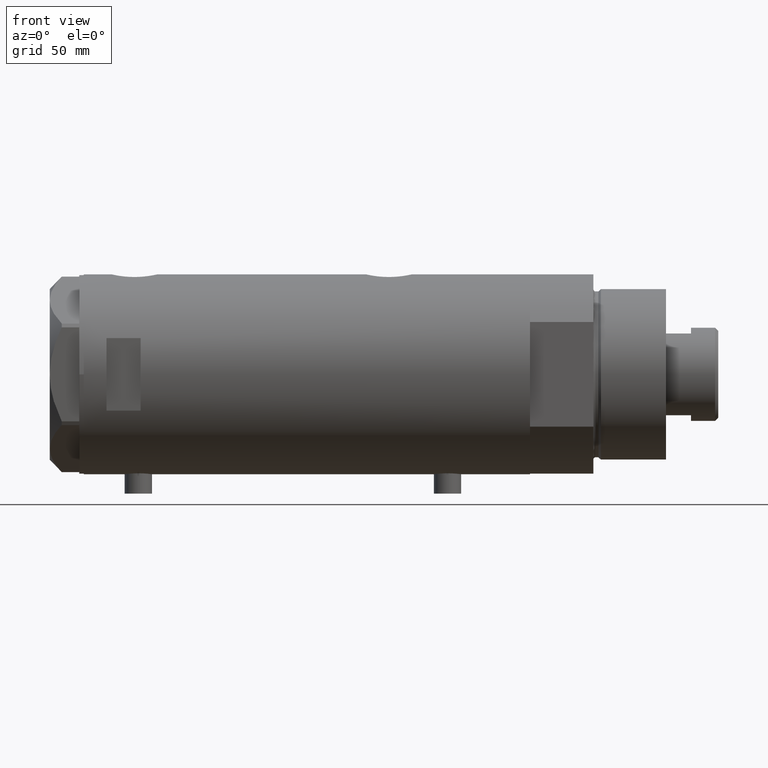
[diagram: clean part render]
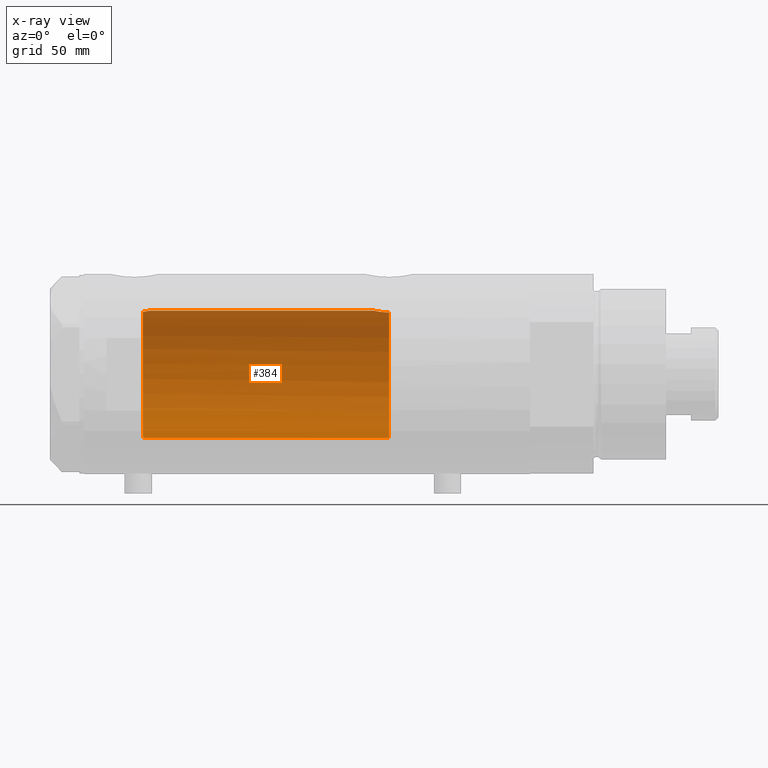
[diagram: x-ray — body ghosted, one internal face saturated and labeled with its STEP entity id]
A machine part, front view, then the same camera in x-ray: the body is ghosted and one INTERNAL B-rep face — a face not visible from any outside direction — is saturated and labeled: STEP entity #384.
In plain terms, the highlighted cylindrical surface (partial cylindrical patch) has radius 28 mm, axis along (1, 0, -0).
Its self-contained STEP definition (entity closure, byte-faithful):
#13 = CARTESIAN_POINT ( 'NONE',  ( 27.46622653369042411, 5.441176343402230664, 72.20000000000001705 ) ) ;
#58 = CARTESIAN_POINT ( 'NONE',  ( -27.99526641882758327, 0.5315981429410570058, 71.75349288902950207 ) ) ;
#76 = CARTESIAN_POINT ( 'NONE',  ( 27.21605408577812568, 6.579240077698946365, -36.20000000000000995 ) ) ;
#178 = VERTEX_POINT ( 'NONE', #2368 ) ;
#312 = EDGE_CURVE ( 'NONE', #3547, #319, #360, .T. ) ;
#319 = VERTEX_POINT ( 'NONE', #3283 ) ;
#334 = CARTESIAN_POINT ( 'NONE',  ( 0.000000000000000000, 0.000000000000000000, 72.20000000000001705 ) ) ;
#360 = CIRCLE ( 'NONE', #4349, 28.00000000000000000 ) ;
#384 = ADVANCED_FACE ( 'NONE', ( #3326 ), #1439, .F. ) ;
#436 = CARTESIAN_POINT ( 'NONE',  ( -27.99904244501445660, 0.2667594590511107033, 71.71065610639783472 ) ) ;
#441 = CARTESIAN_POINT ( 'NONE',  ( 28.00000000000000355, 0.5407212781083803321, 69.32000000000003581 ) ) ;
#459 = CARTESIAN_POINT ( 'NONE',  ( 27.57921322802619457, 4.838471943606465153, -31.63541026849052429 ) ) ;
#501 = CARTESIAN_POINT ( 'NONE',  ( -28.00000000000001421, 0.1336978093699988102, 71.70000000000003126 ) ) ;
#564 = CARTESIAN_POINT ( 'NONE',  ( -28.00000000000000000, 0.000000000000000000, 98.20000000000000284 ) ) ;
#654 = ORIENTED_EDGE ( 'NONE', *, *, #312, .T. ) ;
#730 = DIRECTION ( 'NONE',  ( -1.000000000000000000, 0.000000000000000000, 0.000000000000000000 ) ) ;
#750 = VERTEX_POINT ( 'NONE', #3941 ) ;
#788 = CARTESIAN_POINT ( 'NONE',  ( 27.98435453724556510, 1.072101232728050579, 69.38566097371688102 ) ) ;
#794 = EDGE_LOOP ( 'NONE', ( #1435, #1440, #654, #3548, #2598, #1040, #1748 ) ) ;
#816 = CARTESIAN_POINT ( 'NONE',  ( 27.21712162367727927, 6.574850051620749092, -35.76016190408788731 ) ) ;
#845 = CARTESIAN_POINT ( 'NONE',  ( -27.99241719529042882, 0.6638535868391195471, 71.78604090346938449 ) ) ;
#850 = CARTESIAN_POINT ( 'NONE',  ( 27.49602064413222635, 5.290780227724656726, 71.97882924682045314 ) ) ;
#888 = LINE ( 'NONE', #2425, #1541 ) ;
#919 = CARTESIAN_POINT ( 'NONE',  ( -28.00000000000000000, 0.000000000000000000, -36.20000000000000995 ) ) ;
#988 = CARTESIAN_POINT ( 'NONE',  ( 28.00000000000000000, 8.058211040487717449E-16, -29.52000000000000313 ) ) ;
#1040 = ORIENTED_EDGE ( 'NONE', *, *, #2252, .T. ) ;
#1089 = CARTESIAN_POINT ( 'NONE',  ( 0.000000000000000000, 0.000000000000000000, 98.20000000000000284 ) ) ;
#1130 = CARTESIAN_POINT ( 'NONE',  ( 27.86588799758910895, 2.744542339393448493, -30.11578757899564351 ) ) ;
#1182 = CARTESIAN_POINT ( 'NONE',  ( 27.55311958554909424, 4.984468698502475981, -31.79897075987406296 ) ) ;
#1185 = CARTESIAN_POINT ( 'NONE',  ( -27.97108316360492708, 1.277733827521402299, 72.04702003590384152 ) ) ;
#1354 = EDGE_CURVE ( 'NONE', #750, #2492, #3925, .T. ) ;
#1435 = ORIENTED_EDGE ( 'NONE', *, *, #4164, .F. ) ;
#1439 = CYLINDRICAL_SURFACE ( 'NONE', #1768, 28.00000000000000000 ) ;
#1440 = ORIENTED_EDGE ( 'NONE', *, *, #3985, .F. ) ;
#1442 = CARTESIAN_POINT ( 'NONE',  ( 28.00000000000000000, 0.000000000000000000, 69.32000000000000739 ) ) ;
#1485 = B_SPLINE_CURVE_WITH_KNOTS ( 'NONE', 3,
 ( #1886, #4201, #4495, #3383, #2278, #1130, #1549, #2654, #3422, #3771, #2298, #459, #1182, #3062, #4126, #1909, #3401, #3791, #1520, #4549, #4177, #816, #1960, #76 ),
 .UNSPECIFIED., .F., .F.,
 ( 4, 2, 2, 2, 2, 2, 2, 2, 2, 2, 2, 4 ),
 ( 0.02064447638625019690, 0.02194711032043805340, 0.02324974425462590644, 0.02390106122171983469, 0.02455237818881376294, 0.02585501212300162291, 0.02650632909009555116, 0.02715764605718948288, 0.02846027999137732550, 0.02976291392556516466, 0.03041423089265908597, 0.03106554785975300728 ),
 .UNSPECIFIED. ) ;
#1498 = CARTESIAN_POINT ( 'NONE',  ( 0.000000000000000000, 0.000000000000000000, -36.20000000000000995 ) ) ;
#1520 = CARTESIAN_POINT ( 'NONE',  ( 27.26132124301009441, 6.389601967157239493, -34.46983701249831711 ) ) ;
#1531 = VERTEX_POINT ( 'NONE', #1442 ) ;
#1541 = VECTOR ( 'NONE', #3156, 1000.000000000000000 ) ;
#1549 = CARTESIAN_POINT ( 'NONE',  ( 27.84585502960274184, 2.940342086136633171, -30.20946914370765768 ) ) ;
#1748 = ORIENTED_EDGE ( 'NONE', *, *, #4577, .F. ) ;
#1768 = AXIS2_PLACEMENT_3D ( 'NONE', #1089, #2606, #730 ) ;
#1774 = DIRECTION ( 'NONE',  ( 1.000000000000000000, 0.000000000000000000, 0.000000000000000000 ) ) ;
#1799 = VERTEX_POINT ( 'NONE', #988 ) ;
#1886 = CARTESIAN_POINT ( 'NONE',  ( 28.00000000000000000, 8.058211040487717449E-16, -29.52000000000000313 ) ) ;
#1893 = EDGE_CURVE ( 'NONE', #750, #319, #4829, .T. ) ;
#1909 = CARTESIAN_POINT ( 'NONE',  ( 27.40633791352276560, 5.740289853568799394, -32.85469713442370221 ) ) ;
#1925 = B_SPLINE_CURVE_WITH_KNOTS ( 'NONE', 3,
 ( #13, #850, #2705, #3022, #4183, #3088, #2690, #4163, #4233, #2664, #4138, #788, #441, #2286 ),
 .UNSPECIFIED., .F., .F.,
 ( 4, 2, 2, 2, 2, 2, 4 ),
 ( 0.03488855882532450325, 0.03568791961119571754, 0.03648728039706693183, 0.03808600196880933264, 0.03888536275468051917, 0.03968472354055171264, 0.04128344511229409958 ),
 .UNSPECIFIED. ) ;
#1952 = AXIS2_PLACEMENT_3D ( 'NONE', #1498, #2029, #2170 ) ;
#1960 = CARTESIAN_POINT ( 'NONE',  ( 27.21525044627862755, 6.582564457995944807, -35.98128103916471332 ) ) ;
#1985 = CARTESIAN_POINT ( 'NONE',  ( -27.98091329043153053, 1.040475137928631444, 71.92286628694220951 ) ) ;
#2007 = CARTESIAN_POINT ( 'NONE',  ( -27.98524528460116656, 0.9176973251888912442, 71.87067998681517622 ) ) ;
#2029 = DIRECTION ( 'NONE',  ( 0.000000000000000000, 0.000000000000000000, -1.000000000000000000 ) ) ;
#2055 = CARTESIAN_POINT ( 'NONE',  ( -27.96553810493171355, 1.392903837632989861, 72.11967787822476339 ) ) ;
#2170 = DIRECTION ( 'NONE',  ( -1.000000000000000000, 0.000000000000000000, 0.000000000000000000 ) ) ;
#2252 = EDGE_CURVE ( 'NONE', #2492, #178, #3984, .T. ) ;
#2278 = CARTESIAN_POINT ( 'NONE',  ( 27.92057377942991891, 2.145335874642057217, -29.86449057456583489 ) ) ;
#2286 = CARTESIAN_POINT ( 'NONE',  ( 28.00000000000000000, 0.000000000000000000, 69.32000000000000739 ) ) ;
#2298 = CARTESIAN_POINT ( 'NONE',  ( 27.65669575048418238, 4.382057994727794004, -31.17233761202032838 ) ) ;
#2368 = CARTESIAN_POINT ( 'NONE',  ( 27.21605408577812568, 6.579240077698946365, -36.20000000000000995 ) ) ;
#2401 = VECTOR ( 'NONE', #4610, 1000.000000000000000 ) ;
#2425 = CARTESIAN_POINT ( 'NONE',  ( 28.00000000000000000, 3.429011037612589276E-15, 98.20000000000000284 ) ) ;
#2492 = VERTEX_POINT ( 'NONE', #919 ) ;
#2598 = ORIENTED_EDGE ( 'NONE', *, *, #1354, .T. ) ;
#2606 = DIRECTION ( 'NONE',  ( -0.000000000000000000, -0.000000000000000000, -1.000000000000000000 ) ) ;
#2654 = CARTESIAN_POINT ( 'NONE',  ( 27.80267334785860101, 3.323944738624912798, -30.41709962017577951 ) ) ;
#2664 = CARTESIAN_POINT ( 'NONE',  ( 27.92131942247208798, 2.112374604004425116, 69.66259974202708349 ) ) ;
#2690 = CARTESIAN_POINT ( 'NONE',  ( 27.77752716845531822, 3.554080867558359280, 70.33702809021863800 ) ) ;
#2705 = CARTESIAN_POINT ( 'NONE',  ( 27.52730847012277948, 5.126288527110444804, 71.76623399461912811 ) ) ;
#2983 = CARTESIAN_POINT ( 'NONE',  ( 27.46622653369042411, 5.441176343402230664, 72.20000000000001705 ) ) ;
#3022 = CARTESIAN_POINT ( 'NONE',  ( 27.59012538417911031, 4.776664836238046163, 71.36675298569846859 ) ) ;
#3062 = CARTESIAN_POINT ( 'NONE',  ( 27.50226589723266102, 5.257822516958276182, -32.13779315141981385 ) ) ;
#3088 = CARTESIAN_POINT ( 'NONE',  ( 27.71586615897684780, 3.998795151939225523, 70.64767395625744939 ) ) ;
#3156 = DIRECTION ( 'NONE',  ( -0.000000000000000000, -0.000000000000000000, -1.000000000000000000 ) ) ;
#3283 = CARTESIAN_POINT ( 'NONE',  ( -27.95979256003163016, 1.499999999999989564, 72.20000000000001705 ) ) ;
#3309 = DIRECTION ( 'NONE',  ( 0.000000000000000000, 0.000000000000000000, 1.000000000000000000 ) ) ;
#3326 = FACE_OUTER_BOUND ( 'NONE', #794, .T. ) ;
#3383 = CARTESIAN_POINT ( 'NONE',  ( 27.94984428957576128, 1.729919005741101357, -29.73624844305086512 ) ) ;
#3401 = CARTESIAN_POINT ( 'NONE',  ( 27.36295003163000672, 5.941130795499232065, -33.23794896005177435 ) ) ;
#3422 = CARTESIAN_POINT ( 'NONE',  ( 27.77951318121831292, 3.511620812961478766, -30.53115835401436584 ) ) ;
#3547 = VERTEX_POINT ( 'NONE', #2983 ) ;
#3548 = ORIENTED_EDGE ( 'NONE', *, *, #1893, .F. ) ;
#3771 = CARTESIAN_POINT ( 'NONE',  ( 27.70785054350542964, 4.050475470458777316, -30.89631279652927276 ) ) ;
#3791 = CARTESIAN_POINT ( 'NONE',  ( 27.28989504668421517, 6.268149480003700091, -34.05093353430704184 ) ) ;
#3925 = LINE ( 'NONE', #564, #2401 ) ;
#3941 = CARTESIAN_POINT ( 'NONE',  ( -28.00000000000000000, 3.061617155469534704E-16, 71.70000000000001705 ) ) ;
#3984 = CIRCLE ( 'NONE', #1952, 28.00000000000000000 ) ;
#3985 = EDGE_CURVE ( 'NONE', #3547, #1531, #1925, .T. ) ;
#4126 = CARTESIAN_POINT ( 'NONE',  ( 27.47751794615729537, 5.385218554237049204, -32.31285718566402210 ) ) ;
#4138 = CARTESIAN_POINT ( 'NONE',  ( 27.93969014165221765, 1.855286977351521704, 69.58124112405666040 ) ) ;
#4159 = CARTESIAN_POINT ( 'NONE',  ( -28.00000000000000000, 3.061617155469534704E-16, 71.70000000000001705 ) ) ;
#4163 = CARTESIAN_POINT ( 'NONE',  ( 27.85549123290575579, 2.850830541327404877, 69.96370468682907529 ) ) ;
#4164 = EDGE_CURVE ( 'NONE', #1531, #1799, #888, .T. ) ;
#4177 = CARTESIAN_POINT ( 'NONE',  ( 27.22604017942136423, 6.537820648187911310, -35.32472952793341392 ) ) ;
#4183 = CARTESIAN_POINT ( 'NONE',  ( 27.62184089756353700, 4.590621453796800644, 71.17847296394721468 ) ) ;
#4201 = CARTESIAN_POINT ( 'NONE',  ( 28.00000000000000355, 0.4344375524774767294, -29.51999999999999957 ) ) ;
#4233 = CARTESIAN_POINT ( 'NONE',  ( 27.87926027245440608, 2.609415915507860895, 69.85365920364245085 ) ) ;
#4323 = CARTESIAN_POINT ( 'NONE',  ( -27.95979256003163016, 1.499999999999989564, 72.20000000000001705 ) ) ;
#4349 = AXIS2_PLACEMENT_3D ( 'NONE', #334, #3309, #1774 ) ;
#4495 = CARTESIAN_POINT ( 'NONE',  ( 27.98989376185446432, 0.8673308354119273478, -29.56259295538816545 ) ) ;
#4549 = CARTESIAN_POINT ( 'NONE',  ( 27.23306259439848276, 6.508606919525674606, -35.10931986330979271 ) ) ;
#4577 = EDGE_CURVE ( 'NONE', #1799, #178, #1485, .T. ) ;
#4610 = DIRECTION ( 'NONE',  ( -0.000000000000000000, -0.000000000000000000, -1.000000000000000000 ) ) ;
#4829 = B_SPLINE_CURVE_WITH_KNOTS ( 'NONE', 3,
 ( #4159, #501, #436, #58, #845, #2007, #1985, #1185, #2055, #4323 ),
 .UNSPECIFIED., .F., .F.,
 ( 4, 2, 2, 2, 4 ),
 ( 0.007820031033244191979, 0.008220422245820513049, 0.008620813458396834120, 0.009021204670973155190, 0.009421595883549476261 ),
 .UNSPECIFIED. ) ;